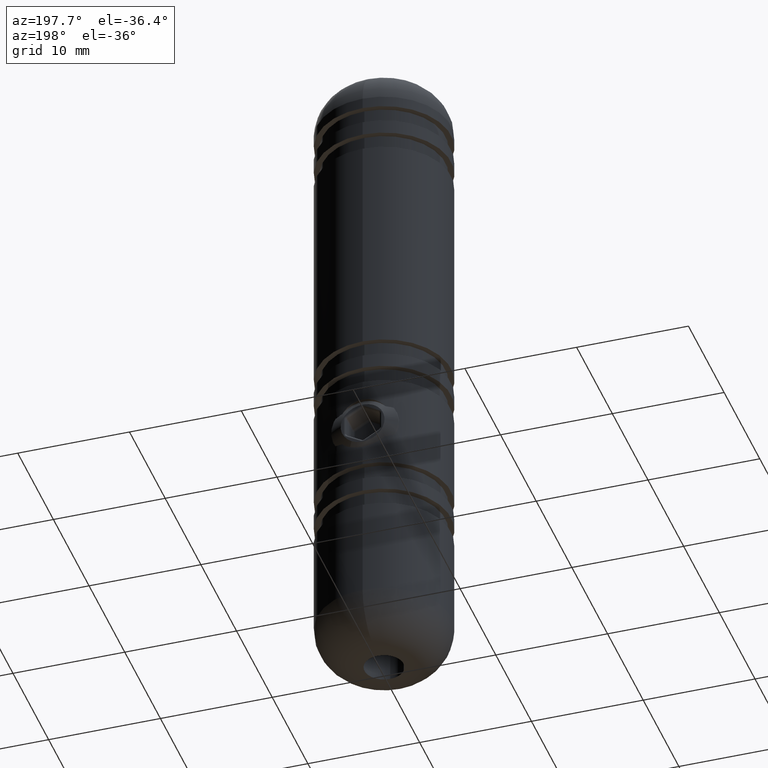
[diagram: clean part render]
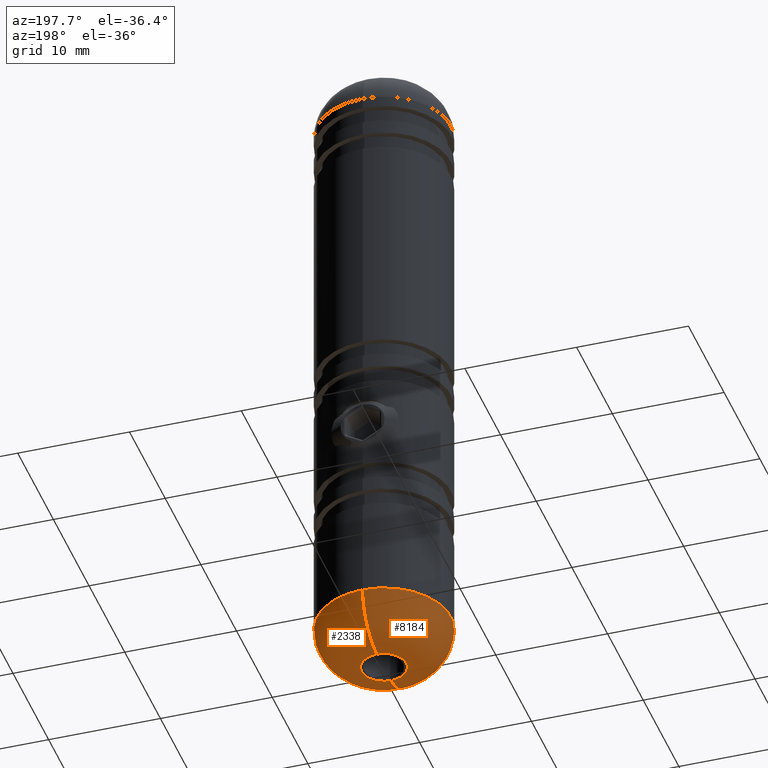
[diagram: same view with one multi-face feature highlighted, each face labeled with its STEP entity id]
A machine part, auxiliary view. The highlighted faces form ONE feature: a constant-radius fillet chain: 2 tangent blend faces with common blend radius 4 mm. The faces share edges in the B-rep.
Their STEP definitions:
[1] entity #8184 (Torus):
#341 = AXIS2_PLACEMENT_3D ( 'NONE', #12828, #17238, #7981 ) ;
#1734 = ORIENTED_EDGE ( 'NONE', *, *, #12636, .F. ) ;
#2461 = CARTESIAN_POINT ( 'NONE',  ( 0.0000000000000000000, -5.999999999999996400, -25.99999999999999600 ) ) ;
#2821 = DIRECTION ( 'NONE',  ( 0.0000000000000000000, -1.000000000000000000, 0.0000000000000000000 ) ) ;
#2907 = AXIS2_PLACEMENT_3D ( 'NONE', #4346, #4707, #13820 ) ;
#3064 = EDGE_LOOP ( 'NONE', ( #1734, #14625, #7632, #17255 ) ) ;
#3316 = CARTESIAN_POINT ( 'NONE',  ( 0.0000000000000000000, -1.999999999999997100, -30.00000000000000000 ) ) ;
#4346 = CARTESIAN_POINT ( 'NONE',  ( 0.0000000000000000000, -3.493109166246275000E-015, -25.99999999999999600 ) ) ;
#4354 = AXIS2_PLACEMENT_3D ( 'NONE', #12963, #6814, #2821 ) ;
#4707 = DIRECTION ( 'NONE',  ( -0.0000000000000000000, 6.237694939725493400E-017, 1.000000000000000000 ) ) ;
#4920 = EDGE_CURVE ( 'NONE', #16217, #11605, #9957, .T. ) ;
#5197 = CIRCLE ( 'NONE', #2907, 5.999999999999992900 ) ;
#5358 = CARTESIAN_POINT ( 'NONE',  ( 2.449293598294698000E-016, 1.999999999999989600, -25.99999999999999600 ) ) ;
#5430 = AXIS2_PLACEMENT_3D ( 'NONE', #5358, #14899, #6682 ) ;
#6227 = CIRCLE ( 'NONE', #341, 4.000000000000000000 ) ;
#6412 = VERTEX_POINT ( 'NONE', #9173 ) ;
#6682 = DIRECTION ( 'NONE',  ( 1.224646799147353200E-016, 1.000000000000000000, 0.0000000000000000000 ) ) ;
#6814 = DIRECTION ( 'NONE',  ( 0.0000000000000000000, -6.237694939725493400E-017, -1.000000000000000000 ) ) ;
#7632 = ORIENTED_EDGE ( 'NONE', *, *, #9149, .T. ) ;
#7981 = DIRECTION ( 'NONE',  ( 0.0000000000000000000, 0.0000000000000000000, 1.000000000000000000 ) ) ;
#8184 = ADVANCED_FACE ( 'NONE', ( #17110 ), #11379, .T. ) ;
#9149 = EDGE_CURVE ( 'NONE', #16217, #16340, #6227, .T. ) ;
#9173 = CARTESIAN_POINT ( 'NONE',  ( 7.347880794884110900E-016, 5.999999999999989300, -25.99999999999999600 ) ) ;
#9336 = EDGE_CURVE ( 'NONE', #6412, #16340, #5197, .T. ) ;
#9957 = CIRCLE ( 'NONE', #4354, 1.999999999999993100 ) ;
#10470 = CIRCLE ( 'NONE', #5430, 4.000000000000000000 ) ;
#11379 = TOROIDAL_SURFACE ( 'NONE', #16110, 1.999999999999993100, 4.000000000000000000 ) ;
#11605 = VERTEX_POINT ( 'NONE', #12118 ) ;
#12118 = CARTESIAN_POINT ( 'NONE',  ( 4.898587196589404000E-016, 1.999999999999989100, -30.00000000000000000 ) ) ;
#12636 = EDGE_CURVE ( 'NONE', #11605, #6412, #10470, .T. ) ;
#12828 = CARTESIAN_POINT ( 'NONE',  ( 0.0000000000000000000, -1.999999999999996700, -25.99999999999999600 ) ) ;
#12963 = CARTESIAN_POINT ( 'NONE',  ( 0.0000000000000000000, -3.742616963835294800E-015, -30.00000000000000000 ) ) ;
#13385 = DIRECTION ( 'NONE',  ( 0.0000000000000000000, -1.000000000000000000, 6.237694939725493400E-017 ) ) ;
#13820 = DIRECTION ( 'NONE',  ( 0.0000000000000000000, -1.000000000000000000, 0.0000000000000000000 ) ) ;
#14625 = ORIENTED_EDGE ( 'NONE', *, *, #4920, .F. ) ;
#14899 = DIRECTION ( 'NONE',  ( 1.000000000000000000, -1.224646799147353200E-016, 7.638973141992468000E-033 ) ) ;
#14932 = CARTESIAN_POINT ( 'NONE',  ( 0.0000000000000000000, -3.493109166246275000E-015, -25.99999999999999600 ) ) ;
#16110 = AXIS2_PLACEMENT_3D ( 'NONE', #14932, #17362, #13385 ) ;
#16217 = VERTEX_POINT ( 'NONE', #3316 ) ;
#16340 = VERTEX_POINT ( 'NONE', #2461 ) ;
#17110 = FACE_OUTER_BOUND ( 'NONE', #3064, .T. ) ;
#17238 = DIRECTION ( 'NONE',  ( -1.000000000000000000, -0.0000000000000000000, 0.0000000000000000000 ) ) ;
#17255 = ORIENTED_EDGE ( 'NONE', *, *, #9336, .F. ) ;
#17362 = DIRECTION ( 'NONE',  ( -0.0000000000000000000, 6.237694939725493400E-017, 1.000000000000000000 ) ) ;
[2] entity #2338 (Torus):
#147 = ORIENTED_EDGE ( 'NONE', *, *, #9149, .F. ) ;
#341 = AXIS2_PLACEMENT_3D ( 'NONE', #12828, #17238, #7981 ) ;
#973 = AXIS2_PLACEMENT_3D ( 'NONE', #12056, #9317, #6581 ) ;
#2294 = CIRCLE ( 'NONE', #10063, 5.999999999999992900 ) ;
#2338 = ADVANCED_FACE ( 'NONE', ( #14917 ), #3410, .T. ) ;
#2461 = CARTESIAN_POINT ( 'NONE',  ( 0.0000000000000000000, -5.999999999999996400, -25.99999999999999600 ) ) ;
#2467 = DIRECTION ( 'NONE',  ( 0.0000000000000000000, -1.000000000000000000, 6.237694939725493400E-017 ) ) ;
#3316 = CARTESIAN_POINT ( 'NONE',  ( 0.0000000000000000000, -1.999999999999997100, -30.00000000000000000 ) ) ;
#3410 = TOROIDAL_SURFACE ( 'NONE', #7960, 1.999999999999993100, 4.000000000000000000 ) ;
#3821 = CIRCLE ( 'NONE', #973, 1.999999999999993100 ) ;
#4613 = ORIENTED_EDGE ( 'NONE', *, *, #15143, .F. ) ;
#4981 = EDGE_CURVE ( 'NONE', #16340, #6412, #2294, .T. ) ;
#5358 = CARTESIAN_POINT ( 'NONE',  ( 2.449293598294698000E-016, 1.999999999999989600, -25.99999999999999600 ) ) ;
#5430 = AXIS2_PLACEMENT_3D ( 'NONE', #5358, #14899, #6682 ) ;
#6227 = CIRCLE ( 'NONE', #341, 4.000000000000000000 ) ;
#6412 = VERTEX_POINT ( 'NONE', #9173 ) ;
#6581 = DIRECTION ( 'NONE',  ( 0.0000000000000000000, -1.000000000000000000, 0.0000000000000000000 ) ) ;
#6682 = DIRECTION ( 'NONE',  ( 1.224646799147353200E-016, 1.000000000000000000, 0.0000000000000000000 ) ) ;
#7911 = DIRECTION ( 'NONE',  ( -0.0000000000000000000, 6.237694939725493400E-017, 1.000000000000000000 ) ) ;
#7960 = AXIS2_PLACEMENT_3D ( 'NONE', #14615, #7911, #2467 ) ;
#7981 = DIRECTION ( 'NONE',  ( 0.0000000000000000000, 0.0000000000000000000, 1.000000000000000000 ) ) ;
#8969 = ORIENTED_EDGE ( 'NONE', *, *, #4981, .F. ) ;
#9149 = EDGE_CURVE ( 'NONE', #16217, #16340, #6227, .T. ) ;
#9173 = CARTESIAN_POINT ( 'NONE',  ( 7.347880794884110900E-016, 5.999999999999989300, -25.99999999999999600 ) ) ;
#9317 = DIRECTION ( 'NONE',  ( 0.0000000000000000000, -6.237694939725493400E-017, -1.000000000000000000 ) ) ;
#10063 = AXIS2_PLACEMENT_3D ( 'NONE', #12783, #10216, #14166 ) ;
#10216 = DIRECTION ( 'NONE',  ( -0.0000000000000000000, 6.237694939725493400E-017, 1.000000000000000000 ) ) ;
#10470 = CIRCLE ( 'NONE', #5430, 4.000000000000000000 ) ;
#11605 = VERTEX_POINT ( 'NONE', #12118 ) ;
#12056 = CARTESIAN_POINT ( 'NONE',  ( 0.0000000000000000000, -3.742616963835294800E-015, -30.00000000000000000 ) ) ;
#12118 = CARTESIAN_POINT ( 'NONE',  ( 4.898587196589404000E-016, 1.999999999999989100, -30.00000000000000000 ) ) ;
#12636 = EDGE_CURVE ( 'NONE', #11605, #6412, #10470, .T. ) ;
#12783 = CARTESIAN_POINT ( 'NONE',  ( 0.0000000000000000000, -3.493109166246275000E-015, -25.99999999999999600 ) ) ;
#12828 = CARTESIAN_POINT ( 'NONE',  ( 0.0000000000000000000, -1.999999999999996700, -25.99999999999999600 ) ) ;
#14143 = EDGE_LOOP ( 'NONE', ( #4613, #14956, #8969, #147 ) ) ;
#14166 = DIRECTION ( 'NONE',  ( 0.0000000000000000000, -1.000000000000000000, 0.0000000000000000000 ) ) ;
#14615 = CARTESIAN_POINT ( 'NONE',  ( 0.0000000000000000000, -3.493109166246275000E-015, -25.99999999999999600 ) ) ;
#14899 = DIRECTION ( 'NONE',  ( 1.000000000000000000, -1.224646799147353200E-016, 7.638973141992468000E-033 ) ) ;
#14917 = FACE_OUTER_BOUND ( 'NONE', #14143, .T. ) ;
#14956 = ORIENTED_EDGE ( 'NONE', *, *, #12636, .T. ) ;
#15143 = EDGE_CURVE ( 'NONE', #11605, #16217, #3821, .T. ) ;
#16217 = VERTEX_POINT ( 'NONE', #3316 ) ;
#16340 = VERTEX_POINT ( 'NONE', #2461 ) ;
#17238 = DIRECTION ( 'NONE',  ( -1.000000000000000000, -0.0000000000000000000, 0.0000000000000000000 ) ) ;